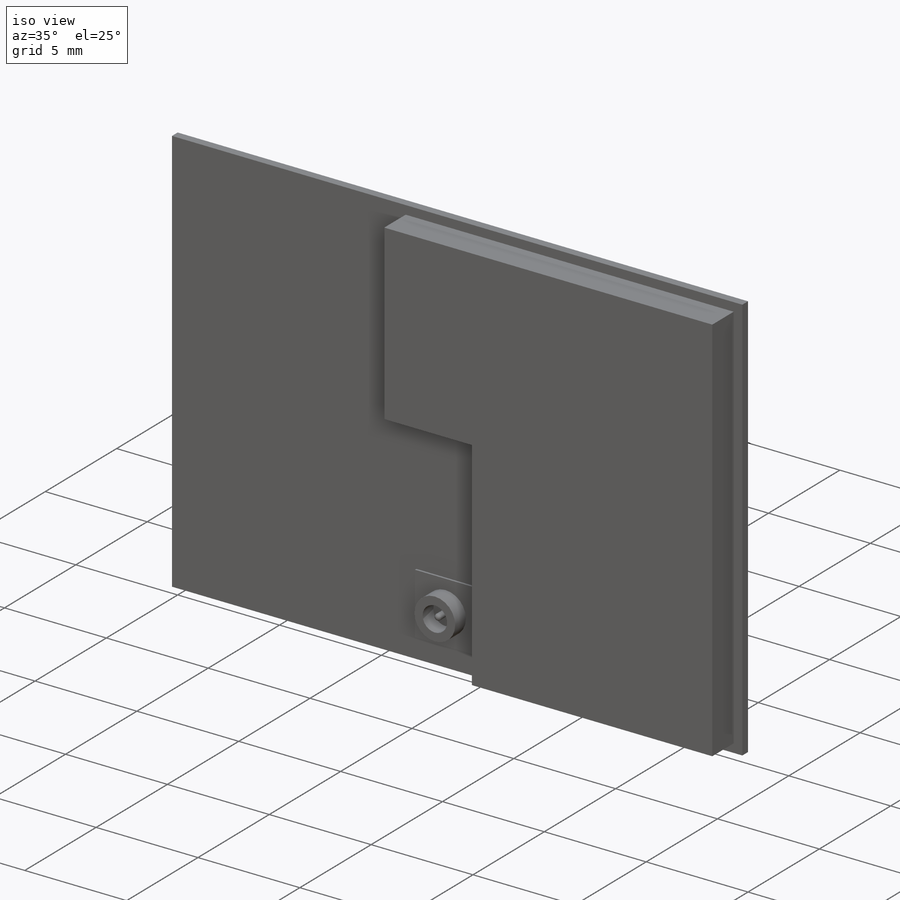
[diagram: iso view]
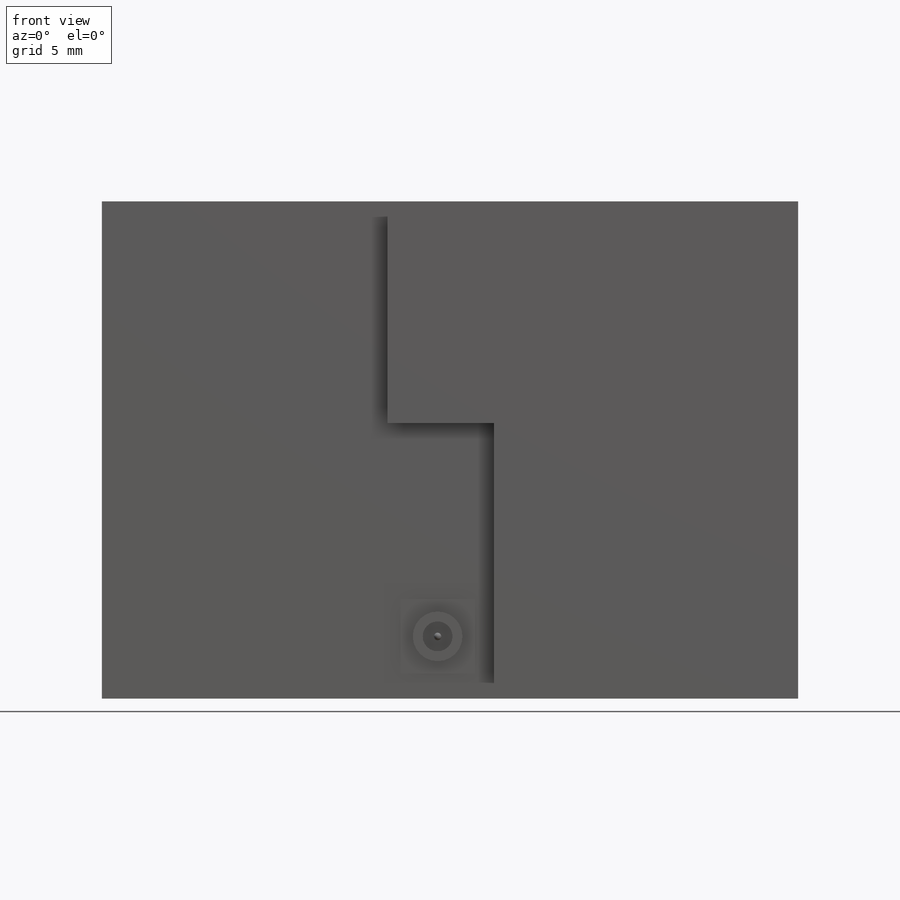
[diagram: front view]
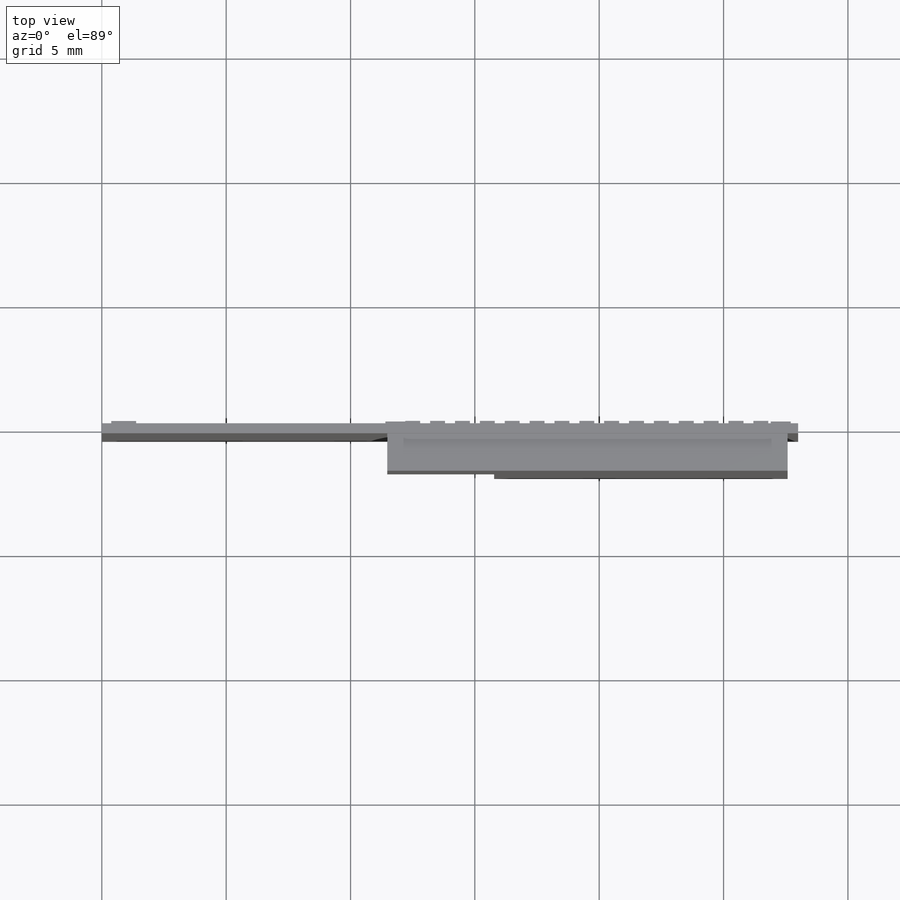
[diagram: top view]
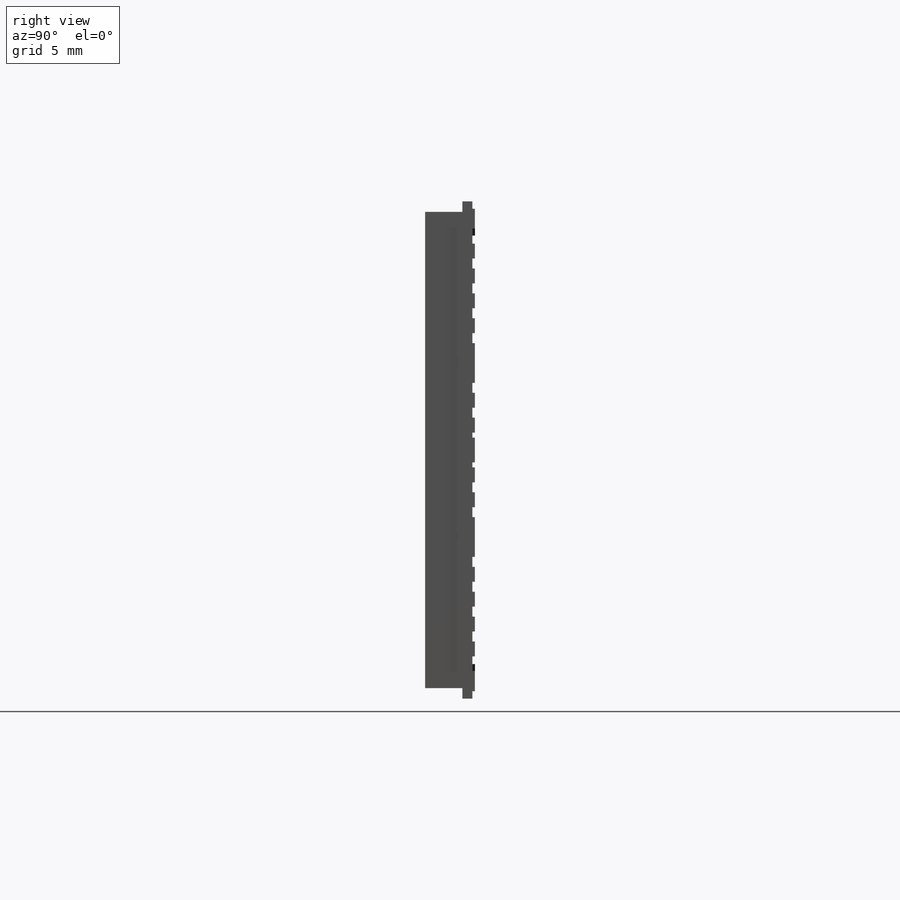
[diagram: right view]
SOLIDWORKS PART (.sldprt)
format: sldprt  version: not decoded by parser v0  size: 566,784 bytes
history: native  units: mm
features: sketch x6, extrude x6, material x1, fillet x1 (+13 scaffold rows collapsed)
feature tree (27):
  scaffold x13  (default folders/planes/origin — collapsed)
  material  "Material <not specified>"
  sketch  "Sketch1"  dims[D1=28.0mm D2=20.0mm]
  extrude  "Boss-Extrude1"  Depth=0.4mm
  sketch  "Sketch2"  dims[D1=19.15mm D2=11.8mm D3=0.425mm D4=16.1mm D5=8.5mm]
  extrude  "Boss-Extrude2"  Depth=1.5mm
  sketch  "Sketch3"  dims[D1=3.0mm D2=3.0mm D3=1.0mm D4=12.0mm]
  extrude  "Boss-Extrude3"  Depth=0.1mm
  sketch  "Sketch4"  dims[D1=2.0mm D2=1.2mm]
  extrude  "Boss-Extrude4"  Depth=0.75mm
  sketch  "Sketch5"  dims[D1=0.3mm]
  extrude  "Boss-Extrude5"  Depth=0.65mm
  fillet  "Fillet1"  Radius=0.15mm
  sketch  "Sketch6"  dims[c1.D1=0.8mm c1.D2=0.6mm c1.D3=0.3mm c1.D4=12.2mm c1.D5=~12.203688mm c1.D6=15.8mm c1.D7=15.8mm c2.D6=15.8mm c2.D7=15.8mm c3.D6=15.8mm c3.D7=15.8mm c4.D6=15.8mm c4.D4=12.2mm c4.D7=0.4mm c4.D8=0.3mm c4.D9=17.8mm c4.D10=12.2mm c4.D11=~13.213448mm c4.D12=11.6mm c5.D4=12.2mm c5.D11=1.1mm c5.D12=0.8mm c5.D13=0.6mm c5.D14=1.7mm c5.D17=1.0mm c5.D18=0.3mm c5.D19=11.4mm c5.D20=1.7mm c5.D21=1.0mm c5.D22=1.0mm c5.D23=11.9mm c5.D24=10.9mm c5.D27=6.0mm c5.D28=5.0mm c5.D29=6.0mm c5.D30=5.0mm c5.D31=1.0mm c5.D32=1.0mm c5.D33=1.38mm c5.D34=1.38mm c5.D35=~1.951615mm c5.D36=2.38mm c6.D33=1.38mm c6.D35=~1.431363mm c6.D36=90.0deg c7.D36=2.38mm c7.D34=1.38mm c8.D36=0.38mm c8.D37=0.38mm c8.D5=15.0 c8.D6=2.0 c8.D15=2.0 c8.D16=17.0 c8.D25=3.0 c8.D26=3.0 c8.D35=2.0]
  extrude  "Boss-Extrude6"  Depth=0.1mm
decode coverage: 13 of 13 modeling features carry decoded parameters
note: ~ marks probable driven/reference dimensions
note: suppression state not decoded; provenance and decode notes live in map.json
